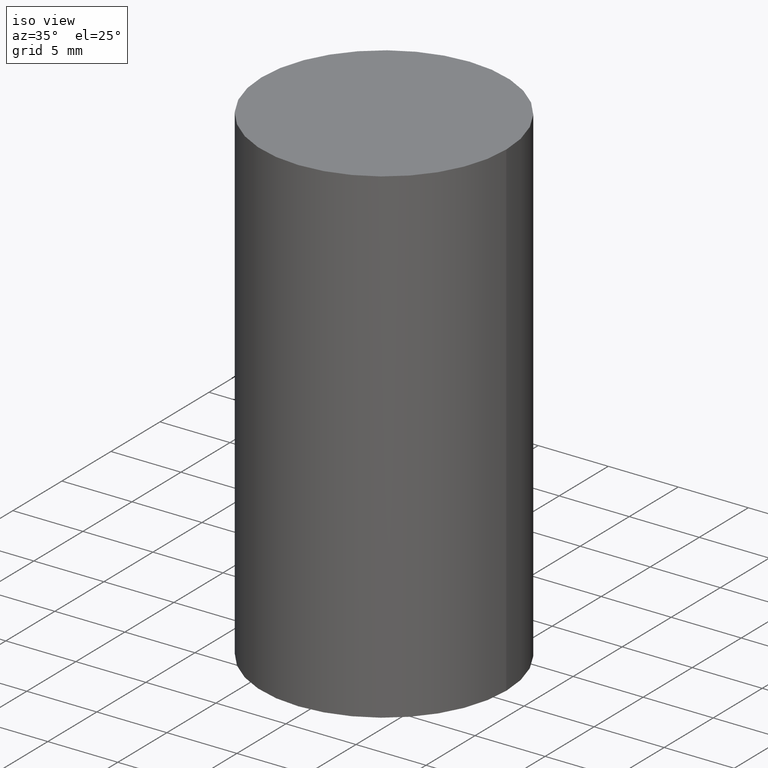
[diagram: clean part render]
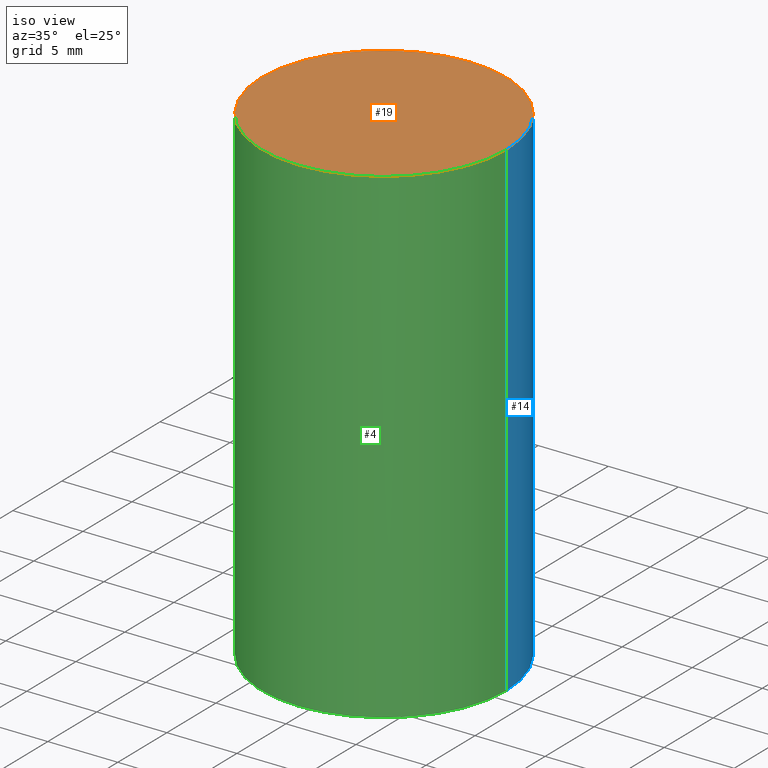
[diagram: same view with three faces highlighted in distinct colors, each labeled with its STEP entity id]
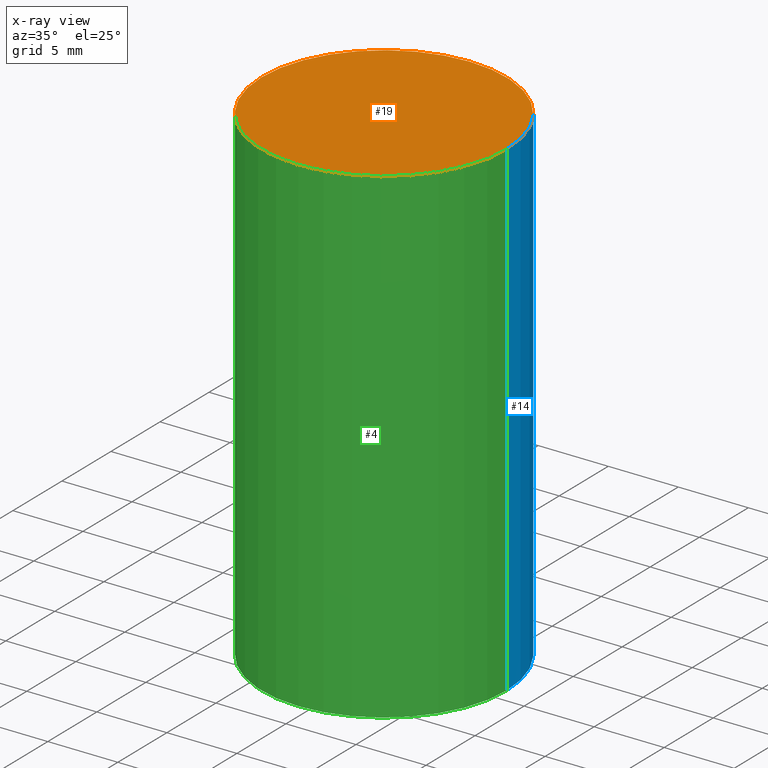
[diagram: x-ray of the same camera — body ghosted, the three highlighted faces saturated]
A machine part, iso view with three faces highlighted in distinct colors.
The next image is the same camera in x-ray (body ghosted, the three faces saturated) — at least one of them is partly hidden behind the body in this view.
Their STEP definitions:

[orange] entity #19 — the highlighted planar face has unit normal (0, -0, -1).
#6 = CARTESIAN_POINT ( 'NONE',  ( 3.056836007731426351E-30, -4.364351673553940360E-16, -0.1250000000000002498 ) ) ;
#7 = ORIENTED_EDGE ( 'NONE', *, *, #148, .T. ) ;
#19 = ADVANCED_FACE ( 'NONE', ( #145 ), #66, .F. ) ;
#21 = AXIS2_PLACEMENT_3D ( 'NONE', #6, #49, #63 ) ;
#37 = CARTESIAN_POINT ( 'NONE',  ( 2.400393420454656943E-15, 0.3437499999999995559, -0.1250000000000014710 ) ) ;
#41 = DIRECTION ( 'NONE',  ( -2.445468806185136597E-29, 3.491481338843145583E-15, 1.000000000000000000 ) ) ;
#49 = DIRECTION ( 'NONE',  ( -2.445468806185136597E-29, 3.491481338843145583E-15, 1.000000000000000000 ) ) ;
#53 = CIRCLE ( 'NONE', #21, 0.3437500000000000000 ) ;
#63 = DIRECTION ( 'NONE',  ( 1.000000000000000000, -6.982962677686265922E-15, 0.000000000000000000 ) ) ;
#64 = VERTEX_POINT ( 'NONE', #121 ) ;
#66 = PLANE ( 'NONE',  #133 ) ;
#77 = VERTEX_POINT ( 'NONE', #178 ) ;
#82 = DIRECTION ( 'NONE',  ( 1.000000000000000000, -6.982962677686265922E-15, 0.000000000000000000 ) ) ;
#83 = EDGE_CURVE ( 'NONE', #77, #64, #53, .T. ) ;
#86 = DIRECTION ( 'NONE',  ( -1.000000000000000000, 6.982962677686265922E-15, -4.876176775795935793E-29 ) ) ;
#121 = CARTESIAN_POINT ( 'NONE',  ( -0.3437500000000000000, -3.943379336347120132E-16, -0.1250000000000002498 ) ) ;
#122 = CIRCLE ( 'NONE', #163, 0.3437500000000000000 ) ;
#131 = EDGE_LOOP ( 'NONE', ( #177, #7 ) ) ;
#133 = AXIS2_PLACEMENT_3D ( 'NONE', #37, #159, #86 ) ;
#137 = CARTESIAN_POINT ( 'NONE',  ( 3.056836007731426351E-30, -4.364351673553940360E-16, -0.1250000000000002498 ) ) ;
#145 = FACE_OUTER_BOUND ( 'NONE', #131, .T. ) ;
#148 = EDGE_CURVE ( 'NONE', #64, #77, #122, .T. ) ;
#159 = DIRECTION ( 'NONE',  ( 2.438088387897960049E-29, -3.491481338843145188E-15, -1.000000000000000000 ) ) ;
#163 = AXIS2_PLACEMENT_3D ( 'NONE', #137, #41, #82 ) ;
#177 = ORIENTED_EDGE ( 'NONE', *, *, #83, .T. ) ;
#178 = CARTESIAN_POINT ( 'NONE',  ( 0.3437500000000000000, -2.836828587810047823E-15, -0.1250000000000002498 ) ) ;

[blue] entity #14 — the highlighted cylindrical surface (partial cylindrical patch) has radius 8.7312 mm, axis along (-0, 0, 1).
#6 = CARTESIAN_POINT ( 'NONE',  ( 3.056836007731426351E-30, -4.364351673553940360E-16, -0.1250000000000002498 ) ) ;
#9 = AXIS2_PLACEMENT_3D ( 'NONE', #104, #147, #93 ) ;
#14 = ADVANCED_FACE ( 'NONE', ( #119 ), #134, .T. ) ;
#15 = AXIS2_PLACEMENT_3D ( 'NONE', #24, #154, #33 ) ;
#21 = AXIS2_PLACEMENT_3D ( 'NONE', #6, #49, #63 ) ;
#24 = CARTESIAN_POINT ( 'NONE',  ( 0.000000000000000000, 0.000000000000000000, 0.000000000000000000 ) ) ;
#27 = DIRECTION ( 'NONE',  ( -2.445468806185136877E-29, 3.491481338843145188E-15, 1.000000000000000000 ) ) ;
#29 = EDGE_CURVE ( 'NONE', #60, #64, #155, .T. ) ;
#33 = DIRECTION ( 'NONE',  ( 1.000000000000000000, -6.982962677686265922E-15, 4.876176775795935793E-29 ) ) ;
#38 = VECTOR ( 'NONE', #98, 39.37007874015748143 ) ;
#49 = DIRECTION ( 'NONE',  ( -2.445468806185136597E-29, 3.491481338843145583E-15, 1.000000000000000000 ) ) ;
#53 = CIRCLE ( 'NONE', #21, 0.3437500000000000000 ) ;
#60 = VERTEX_POINT ( 'NONE', #132 ) ;
#63 = DIRECTION ( 'NONE',  ( 1.000000000000000000, -6.982962677686265922E-15, 0.000000000000000000 ) ) ;
#64 = VERTEX_POINT ( 'NONE', #121 ) ;
#77 = VERTEX_POINT ( 'NONE', #178 ) ;
#83 = EDGE_CURVE ( 'NONE', #77, #64, #53, .T. ) ;
#90 = CARTESIAN_POINT ( 'NONE',  ( -0.3437500000000000000, 2.442490654175344389E-15, -1.690883937275123635E-29 ) ) ;
#92 = ORIENTED_EDGE ( 'NONE', *, *, #166, .F. ) ;
#93 = DIRECTION ( 'NONE',  ( 1.000000000000000000, -6.982962677686265922E-15, 0.000000000000000000 ) ) ;
#96 = LINE ( 'NONE', #162, #38 ) ;
#98 = DIRECTION ( 'NONE',  ( -2.445468806185136877E-29, 3.491481338843145188E-15, 1.000000000000000000 ) ) ;
#103 = VECTOR ( 'NONE', #27, 39.37007874015748143 ) ;
#104 = CARTESIAN_POINT ( 'NONE',  ( 3.668203209277704895E-29, -5.237222008264718177E-15, -1.500000000000000222 ) ) ;
#106 = VERTEX_POINT ( 'NONE', #117 ) ;
#114 = ORIENTED_EDGE ( 'NONE', *, *, #29, .T. ) ;
#115 = ORIENTED_EDGE ( 'NONE', *, *, #83, .F. ) ;
#117 = CARTESIAN_POINT ( 'NONE',  ( 0.3437500000000000000, -7.637615428719372358E-15, -1.500000000000000222 ) ) ;
#119 = FACE_OUTER_BOUND ( 'NONE', #171, .T. ) ;
#121 = CARTESIAN_POINT ( 'NONE',  ( -0.3437500000000000000, -3.943379336347120132E-16, -0.1250000000000002498 ) ) ;
#132 = CARTESIAN_POINT ( 'NONE',  ( -0.3437500000000000000, -3.943379336347116681E-16, -1.500000000000000222 ) ) ;
#134 = CYLINDRICAL_SURFACE ( 'NONE', #15, 0.3437500000000000000 ) ;
#136 = ORIENTED_EDGE ( 'NONE', *, *, #139, .T. ) ;
#139 = EDGE_CURVE ( 'NONE', #106, #60, #175, .T. ) ;
#147 = DIRECTION ( 'NONE',  ( -2.445468806185136597E-29, 3.491481338843145583E-15, 1.000000000000000000 ) ) ;
#154 = DIRECTION ( 'NONE',  ( -2.445468806185136597E-29, 3.491481338843145583E-15, 1.000000000000000000 ) ) ;
#155 = LINE ( 'NONE', #90, #103 ) ;
#162 = CARTESIAN_POINT ( 'NONE',  ( 0.3437500000000000000, -2.400393420454653787E-15, 1.676185766679852859E-29 ) ) ;
#166 = EDGE_CURVE ( 'NONE', #106, #77, #96, .T. ) ;
#171 = EDGE_LOOP ( 'NONE', ( #136, #114, #115, #92 ) ) ;
#175 = CIRCLE ( 'NONE', #9, 0.3437500000000000000 ) ;
#178 = CARTESIAN_POINT ( 'NONE',  ( 0.3437500000000000000, -2.836828587810047823E-15, -0.1250000000000002498 ) ) ;

[green] entity #4 — the highlighted cylindrical surface (partial cylindrical patch) has radius 8.7312 mm, axis along (-0, 0, 1).
#4 = ADVANCED_FACE ( 'NONE', ( #46 ), #105, .T. ) ;
#10 = DIRECTION ( 'NONE',  ( 1.000000000000000000, -6.982962677686265922E-15, 0.000000000000000000 ) ) ;
#25 = DIRECTION ( 'NONE',  ( -2.445468806185136597E-29, 3.491481338843145583E-15, 1.000000000000000000 ) ) ;
#27 = DIRECTION ( 'NONE',  ( -2.445468806185136877E-29, 3.491481338843145188E-15, 1.000000000000000000 ) ) ;
#29 = EDGE_CURVE ( 'NONE', #60, #64, #155, .T. ) ;
#35 = ORIENTED_EDGE ( 'NONE', *, *, #166, .T. ) ;
#38 = VECTOR ( 'NONE', #98, 39.37007874015748143 ) ;
#40 = AXIS2_PLACEMENT_3D ( 'NONE', #157, #44, #101 ) ;
#41 = DIRECTION ( 'NONE',  ( -2.445468806185136597E-29, 3.491481338843145583E-15, 1.000000000000000000 ) ) ;
#43 = EDGE_CURVE ( 'NONE', #60, #106, #73, .T. ) ;
#44 = DIRECTION ( 'NONE',  ( -2.445468806185136597E-29, 3.491481338843145583E-15, 1.000000000000000000 ) ) ;
#46 = FACE_OUTER_BOUND ( 'NONE', #52, .T. ) ;
#50 = ORIENTED_EDGE ( 'NONE', *, *, #148, .F. ) ;
#52 = EDGE_LOOP ( 'NONE', ( #168, #146, #35, #50 ) ) ;
#60 = VERTEX_POINT ( 'NONE', #132 ) ;
#64 = VERTEX_POINT ( 'NONE', #121 ) ;
#73 = CIRCLE ( 'NONE', #112, 0.3437500000000000000 ) ;
#76 = CARTESIAN_POINT ( 'NONE',  ( 3.668203209277704895E-29, -5.237222008264718177E-15, -1.500000000000000222 ) ) ;
#77 = VERTEX_POINT ( 'NONE', #178 ) ;
#82 = DIRECTION ( 'NONE',  ( 1.000000000000000000, -6.982962677686265922E-15, 0.000000000000000000 ) ) ;
#90 = CARTESIAN_POINT ( 'NONE',  ( -0.3437500000000000000, 2.442490654175344389E-15, -1.690883937275123635E-29 ) ) ;
#96 = LINE ( 'NONE', #162, #38 ) ;
#98 = DIRECTION ( 'NONE',  ( -2.445468806185136877E-29, 3.491481338843145188E-15, 1.000000000000000000 ) ) ;
#101 = DIRECTION ( 'NONE',  ( 1.000000000000000000, -6.982962677686265922E-15, 4.876176775795935793E-29 ) ) ;
#103 = VECTOR ( 'NONE', #27, 39.37007874015748143 ) ;
#105 = CYLINDRICAL_SURFACE ( 'NONE', #40, 0.3437500000000000000 ) ;
#106 = VERTEX_POINT ( 'NONE', #117 ) ;
#112 = AXIS2_PLACEMENT_3D ( 'NONE', #76, #25, #10 ) ;
#117 = CARTESIAN_POINT ( 'NONE',  ( 0.3437500000000000000, -7.637615428719372358E-15, -1.500000000000000222 ) ) ;
#121 = CARTESIAN_POINT ( 'NONE',  ( -0.3437500000000000000, -3.943379336347120132E-16, -0.1250000000000002498 ) ) ;
#122 = CIRCLE ( 'NONE', #163, 0.3437500000000000000 ) ;
#132 = CARTESIAN_POINT ( 'NONE',  ( -0.3437500000000000000, -3.943379336347116681E-16, -1.500000000000000222 ) ) ;
#137 = CARTESIAN_POINT ( 'NONE',  ( 3.056836007731426351E-30, -4.364351673553940360E-16, -0.1250000000000002498 ) ) ;
#146 = ORIENTED_EDGE ( 'NONE', *, *, #43, .T. ) ;
#148 = EDGE_CURVE ( 'NONE', #64, #77, #122, .T. ) ;
#155 = LINE ( 'NONE', #90, #103 ) ;
#157 = CARTESIAN_POINT ( 'NONE',  ( 0.000000000000000000, 0.000000000000000000, 0.000000000000000000 ) ) ;
#162 = CARTESIAN_POINT ( 'NONE',  ( 0.3437500000000000000, -2.400393420454653787E-15, 1.676185766679852859E-29 ) ) ;
#163 = AXIS2_PLACEMENT_3D ( 'NONE', #137, #41, #82 ) ;
#166 = EDGE_CURVE ( 'NONE', #106, #77, #96, .T. ) ;
#168 = ORIENTED_EDGE ( 'NONE', *, *, #29, .F. ) ;
#178 = CARTESIAN_POINT ( 'NONE',  ( 0.3437500000000000000, -2.836828587810047823E-15, -0.1250000000000002498 ) ) ;